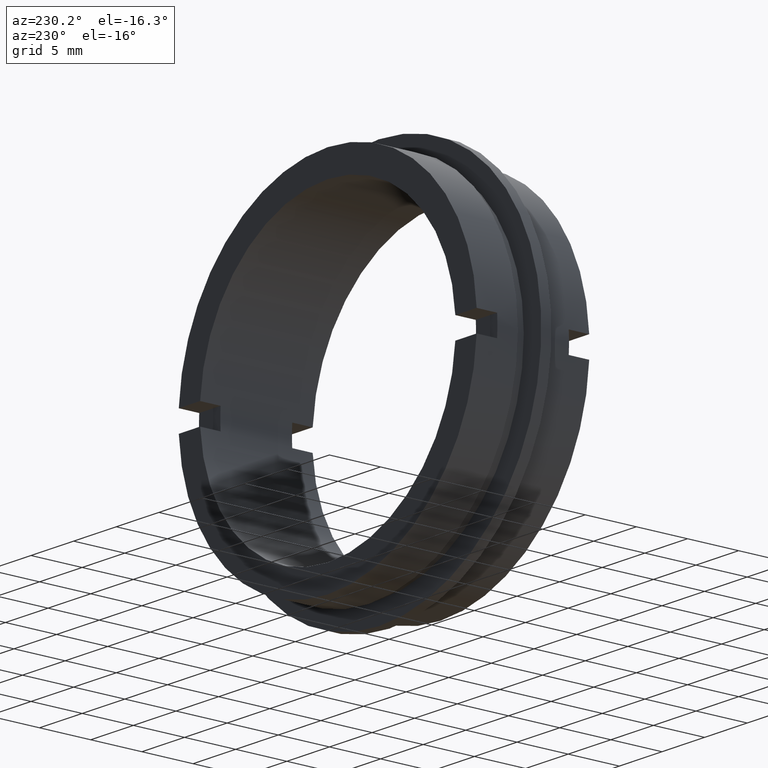
[diagram: clean part render]
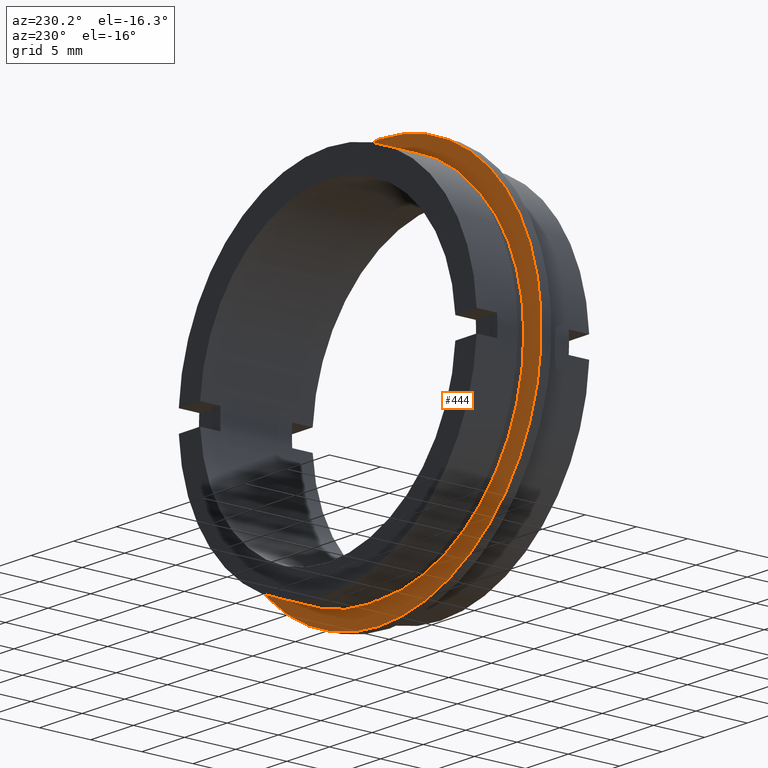
[diagram: same view with one face highlighted and labeled with its STEP entity id]
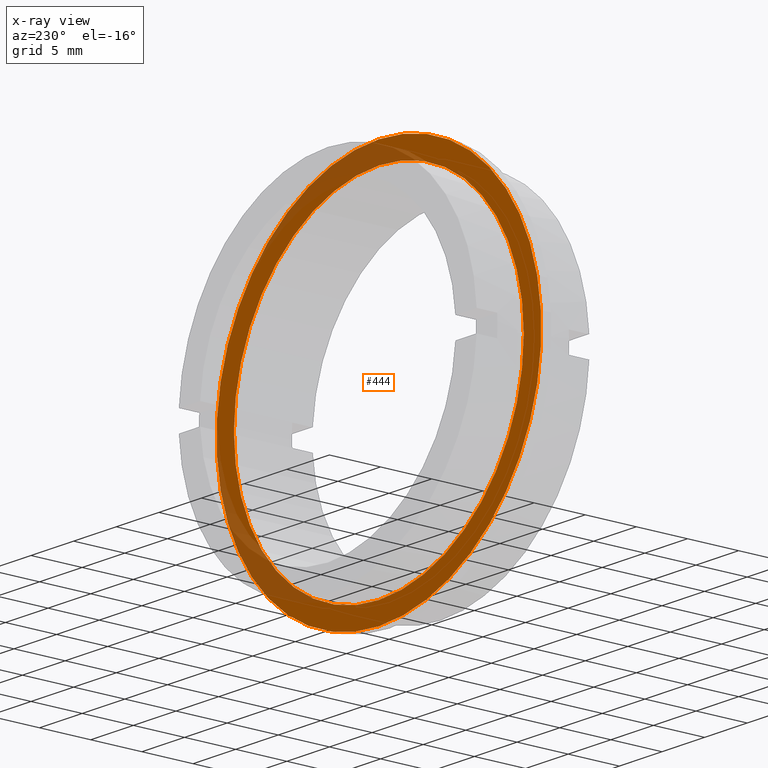
[diagram: x-ray of the same camera — body ghosted, the highlighted face saturated]
A machine part, auxiliary view. The second image highlights one B-rep face of the part: STEP entity #444.
The next image is the same camera in x-ray: the body ghosted, the highlighted face saturated — about 21% of this face is hidden behind the body in this view.
In plain terms, the highlighted planar face has unit normal (-0, 1, 0).
Its self-contained STEP definition (entity closure, byte-faithful):
#20 = AXIS2_PLACEMENT_3D ( 'NONE', #1003, #861, #478 ) ;
#88 = ORIENTED_EDGE ( 'NONE', *, *, #441, .T. ) ;
#115 = DIRECTION ( 'NONE',  ( 0.0000000000000000000, 0.0000000000000000000, 1.000000000000000000 ) ) ;
#154 = CIRCLE ( 'NONE', #199, 19.04999999999999700 ) ;
#159 = DIRECTION ( 'NONE',  ( 0.0000000000000000000, 0.0000000000000000000, 1.000000000000000000 ) ) ;
#190 = VERTEX_POINT ( 'NONE', #420 ) ;
#199 = AXIS2_PLACEMENT_3D ( 'NONE', #345, #853, #244 ) ;
#204 = CARTESIAN_POINT ( 'NONE',  ( 2.332952152375707300E-015, 6.000000000000001800, -19.04999999999999700 ) ) ;
#214 = VERTEX_POINT ( 'NONE', #204 ) ;
#234 = CARTESIAN_POINT ( 'NONE',  ( 0.0000000000000000000, 6.000000000000001800, 19.04999999999999700 ) ) ;
#244 = DIRECTION ( 'NONE',  ( 0.0000000000000000000, 0.0000000000000000000, 1.000000000000000000 ) ) ;
#274 = AXIS2_PLACEMENT_3D ( 'NONE', #1039, #774, #159 ) ;
#282 = AXIS2_PLACEMENT_3D ( 'NONE', #851, #1126, #675 ) ;
#290 = CARTESIAN_POINT ( 'NONE',  ( 0.0000000000000000000, 5.999999999999998200, 0.0000000000000000000 ) ) ;
#296 = FACE_BOUND ( 'NONE', #1134, .T. ) ;
#335 = CARTESIAN_POINT ( 'NONE',  ( 0.0000000000000000000, 5.999999999999998200, 17.00000000000000000 ) ) ;
#345 = CARTESIAN_POINT ( 'NONE',  ( 0.0000000000000000000, 6.000000000000001800, 0.0000000000000000000 ) ) ;
#420 = CARTESIAN_POINT ( 'NONE',  ( 2.081899558550500300E-015, 5.999999999999998200, -17.00000000000000000 ) ) ;
#441 = EDGE_CURVE ( 'NONE', #214, #795, #154, .T. ) ;
#444 = ADVANCED_FACE ( 'NONE', ( #994, #296 ), #1130, .T. ) ;
#464 = ORIENTED_EDGE ( 'NONE', *, *, #596, .T. ) ;
#478 = DIRECTION ( 'NONE',  ( 0.0000000000000000000, 0.0000000000000000000, 1.000000000000000000 ) ) ;
#525 = ORIENTED_EDGE ( 'NONE', *, *, #702, .F. ) ;
#596 = EDGE_CURVE ( 'NONE', #795, #214, #869, .T. ) ;
#675 = DIRECTION ( 'NONE',  ( 0.0000000000000000000, 0.0000000000000000000, 1.000000000000000000 ) ) ;
#702 = EDGE_CURVE ( 'NONE', #709, #190, #965, .T. ) ;
#709 = VERTEX_POINT ( 'NONE', #335 ) ;
#774 = DIRECTION ( 'NONE',  ( -0.0000000000000000000, 1.000000000000000000, 0.0000000000000000000 ) ) ;
#775 = EDGE_LOOP ( 'NONE', ( #464, #88 ) ) ;
#795 = VERTEX_POINT ( 'NONE', #234 ) ;
#851 = CARTESIAN_POINT ( 'NONE',  ( 0.0000000000000000000, 5.999999999999998200, 0.0000000000000000000 ) ) ;
#853 = DIRECTION ( 'NONE',  ( -0.0000000000000000000, 1.000000000000000000, -0.0000000000000000000 ) ) ;
#861 = DIRECTION ( 'NONE',  ( -0.0000000000000000000, 1.000000000000000000, -0.0000000000000000000 ) ) ;
#869 = CIRCLE ( 'NONE', #20, 19.04999999999999700 ) ;
#884 = EDGE_CURVE ( 'NONE', #190, #709, #1066, .T. ) ;
#901 = DIRECTION ( 'NONE',  ( -0.0000000000000000000, 1.000000000000000000, -0.0000000000000000000 ) ) ;
#911 = ORIENTED_EDGE ( 'NONE', *, *, #884, .F. ) ;
#959 = AXIS2_PLACEMENT_3D ( 'NONE', #290, #901, #115 ) ;
#965 = CIRCLE ( 'NONE', #282, 17.00000000000000000 ) ;
#994 = FACE_OUTER_BOUND ( 'NONE', #775, .T. ) ;
#1003 = CARTESIAN_POINT ( 'NONE',  ( 0.0000000000000000000, 6.000000000000001800, 0.0000000000000000000 ) ) ;
#1039 = CARTESIAN_POINT ( 'NONE',  ( -17.00000000000000000, 6.000000000000000000, 0.0000000000000000000 ) ) ;
#1066 = CIRCLE ( 'NONE', #959, 17.00000000000000000 ) ;
#1126 = DIRECTION ( 'NONE',  ( -0.0000000000000000000, 1.000000000000000000, -0.0000000000000000000 ) ) ;
#1130 = PLANE ( 'NONE',  #274 ) ;
#1134 = EDGE_LOOP ( 'NONE', ( #525, #911 ) ) ;